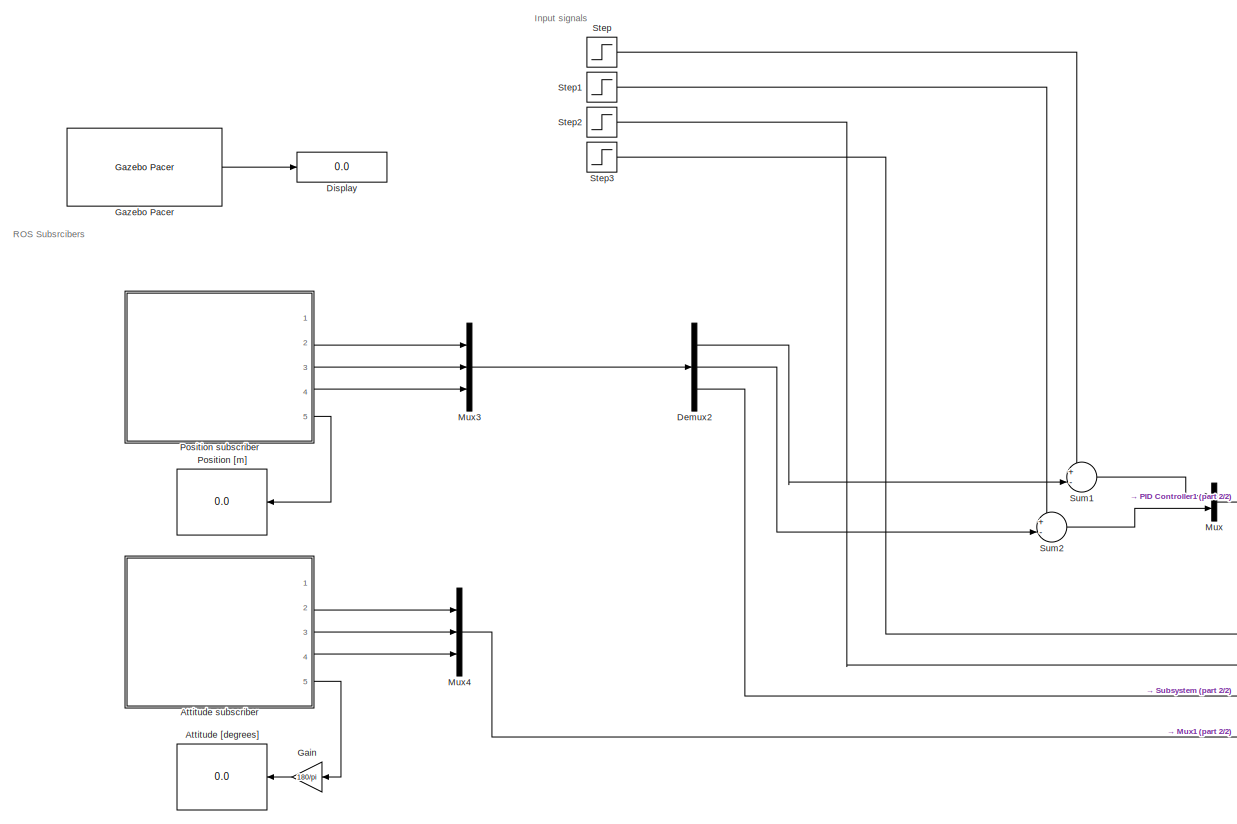
[diagram: root canvas - part 1/2, left side, full height]
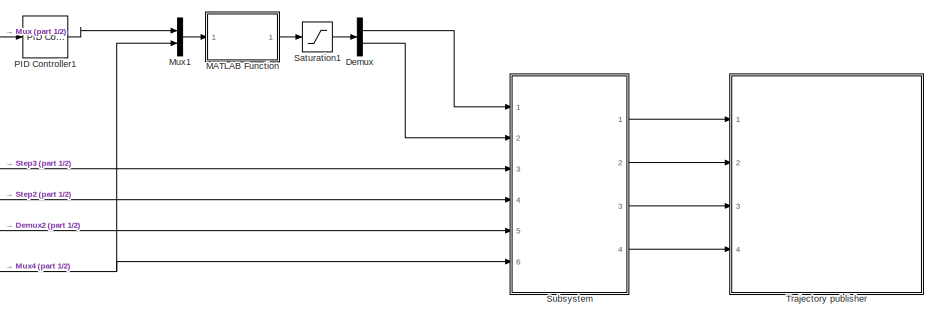
[diagram: root canvas - part 2/2, bottom right region]
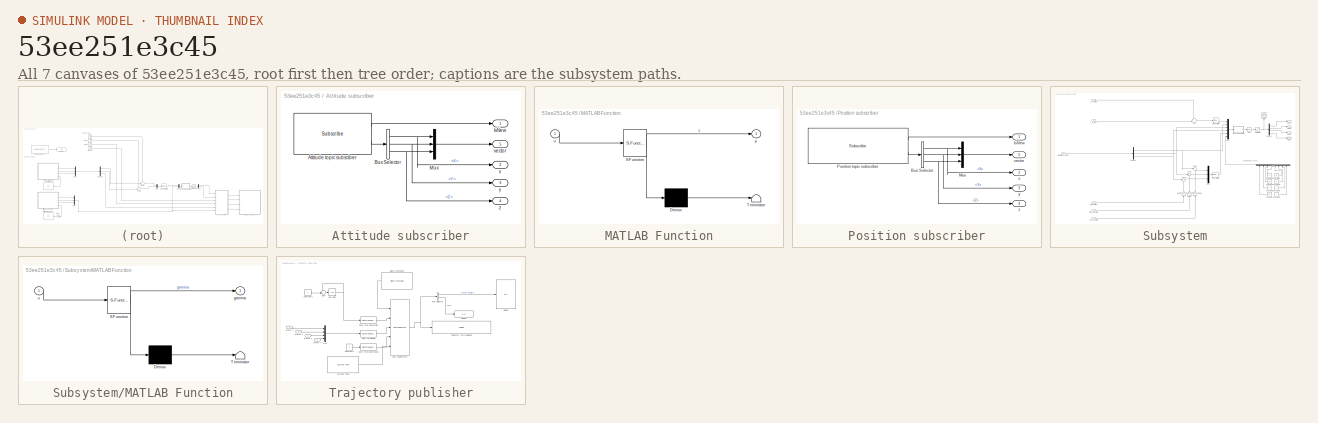
[diagram: thumbnail index - all 7 canvases of the model, root first then tree order]
MODEL slx_53ee251e3c45
KIND model
CONFIG AbsTol = auto
CONFIG EnableMultiTasking = off
CONFIG FixedStep = FIXED_STEP_SIZE
CONFIG MaxStep = auto
CONFIG MinStep = auto
CONFIG RelTol = 1e-3
CONFIG SampleTimeConstraint = Unconstrained
CONFIG Solver = FixedStepAuto
CONFIG SolverName = FixedStepAuto
CONFIG StartTime = 0.0
CONFIG StopTime = inf
WORKSPACE source: mxarray member
WORKSPACE SL_ROS_VariableLengthArrays_MaxSizes: object (value not decoded)
BLOCK [Display] Attitude [degrees]
  Decimation = 1
  Ports = [1]
BLOCK [SubSystem] Attitude subscriber
  Ports = [0, 5]
  RequestExecContextInheritance = off
BLOCK [Reference] Attitude subscriber/Attitude topic subsciber  REF=robotlib/Subscribe
  Ports = [0, 2]
  SourceBlock = robotlib/Subscribe
  SourceProductBaseCode = RR
  SourceProductName = ROS Toolbox
  SourceType = ROS Subscribe
BLOCK [BusSelector] Attitude subscriber/Bus Selector
  OutputAsBus = off
  OutputSignals = X,Y,Z
  Ports = [1, 3]
BLOCK [Outport] Attitude subscriber/IsNew
  IconDisplay = Port number
BLOCK [Mux] Attitude subscriber/Mux
  DisplayOption = bar
  Inputs = 3
  Ports = [3, 1]
BLOCK [Outport] Attitude subscriber/vector
  IconDisplay = Port number
  Port = 5
BLOCK [Outport] Attitude subscriber/x
  IconDisplay = Port number
  Port = 2
BLOCK [Outport] Attitude subscriber/y
  IconDisplay = Port number
  Port = 3
BLOCK [Outport] Attitude subscriber/z
  IconDisplay = Port number
  Port = 4
BLOCK [Demux] Demux
  DisplayOption = bar
  Outputs = 2
  Ports = [1, 2]
BLOCK [Demux] Demux2
  DisplayOption = bar
  Outputs = 3
  Ports = [1, 3]
BLOCK [Display] Display
  Decimation = 1
  Ports = [1]
BLOCK [Gain] Gain
  Gain = 180/pi
  OutDataTypeStr = Inherit: Inherit via internal rule
  ParamDataTypeStr = Inherit: Inherit via internal rule
  SaturateOnIntegerOverflow = off
BLOCK [Reference] Gazebo Pacer  REF=robotgazebolib/Gazebo Pacer
  Ports = [0, 1]
  SourceBlock = robotgazebolib/Gazebo Pacer
  SourceProductBaseCode = RO
  SourceProductName = Robotics System Toolbox
  SourceType = Gazebo Pacer
BLOCK [SubSystem] MATLAB Function
  ErrorFcn = Stateflow.Translate.translate
  PermitHierarchicalResolution = ExplicitOnly
  Ports = [1, 1]
  RequestExecContextInheritance = off
  SFBlockType = MATLAB Function
  TreatAsAtomicUnit = on
BLOCK [Demux] MATLAB Function/ Demux 
  Outputs = 1
  Ports = [1, 1]
BLOCK [S-Function] MATLAB Function/ SFunction 
  EnableBusSupport = on
  FunctionName = sf_sfun
  PortCounts = [1 2]
  Ports = [1, 2]
  SFcnIsStateOwnerBlock = off
  SFunctionDeploymentMode = off
  Tag = Stateflow S-Function 1
BLOCK [Terminator] MATLAB Function/ Terminator 
BLOCK [Inport] MATLAB Function/u
  IconDisplay = Port number
BLOCK [Outport] MATLAB Function/y
  IconDisplay = Port number
BLOCK [Mux] Mux
  DisplayOption = bar
  Inputs = 2
  Ports = [2, 1]
BLOCK [Mux] Mux1
  DisplayOption = bar
  Inputs = 2
  Ports = [2, 1]
BLOCK [Mux] Mux3
  DisplayOption = bar
  Inputs = 3
  Ports = [3, 1]
BLOCK [Mux] Mux4
  DisplayOption = bar
  Inputs = 3
  Ports = [3, 1]
BLOCK [Reference] PID Controller1  REF=simulink/Continuous/PID Controller
  Ports = [1, 1]
  SourceBlock = simulink/Continuous/PID Controller
  SourceProductBaseCode = SL
  SourceProductName = Simulink
  SourceType = PID 1dof
BLOCK [Display] Position [m]
  Decimation = 1
  Ports = [1]
BLOCK [SubSystem] Position subscriber
  Ports = [0, 5]
  RequestExecContextInheritance = off
BLOCK [BusSelector] Position subscriber/Bus Selector
  OutputAsBus = off
  OutputSignals = Point.X,Point.Y,Point.Z
  Ports = [1, 3]
BLOCK [Outport] Position subscriber/IsNew
  IconDisplay = Port number
BLOCK [Mux] Position subscriber/Mux
  DisplayOption = bar
  Inputs = 3
  Ports = [3, 1]
BLOCK [Reference] Position subscriber/Position topic subscriber  REF=robotlib/Subscribe
  Ports = [0, 2]
  SourceBlock = robotlib/Subscribe
  SourceProductBaseCode = RR
  SourceProductName = ROS Toolbox
  SourceType = ROS Subscribe
BLOCK [Outport] Position subscriber/vector
  IconDisplay = Port number
  Port = 5
BLOCK [Outport] Position subscriber/x
  IconDisplay = Port number
  Port = 2
BLOCK [Outport] Position subscriber/y
  IconDisplay = Port number
  Port = 3
BLOCK [Outport] Position subscriber/z
  IconDisplay = Port number
  Port = 4
BLOCK [Saturate] Saturation1
  InputPortMap = u0
  LowerLimit = -0.4
  Ports = [1, 1]
  UpperLimit = 0.4
BLOCK [Step] Step
  After = 4
  SampleTime = 0
  Time = 3
BLOCK [Step] Step1
  After = 6
  SampleTime = 0
  Time = 3
BLOCK [Step] Step2
  SampleTime = 0
BLOCK [Step] Step3
  After = 90
  SampleTime = 0
  Time = 3
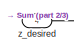
[diagram: Subsystem - part 1/3, top left region]
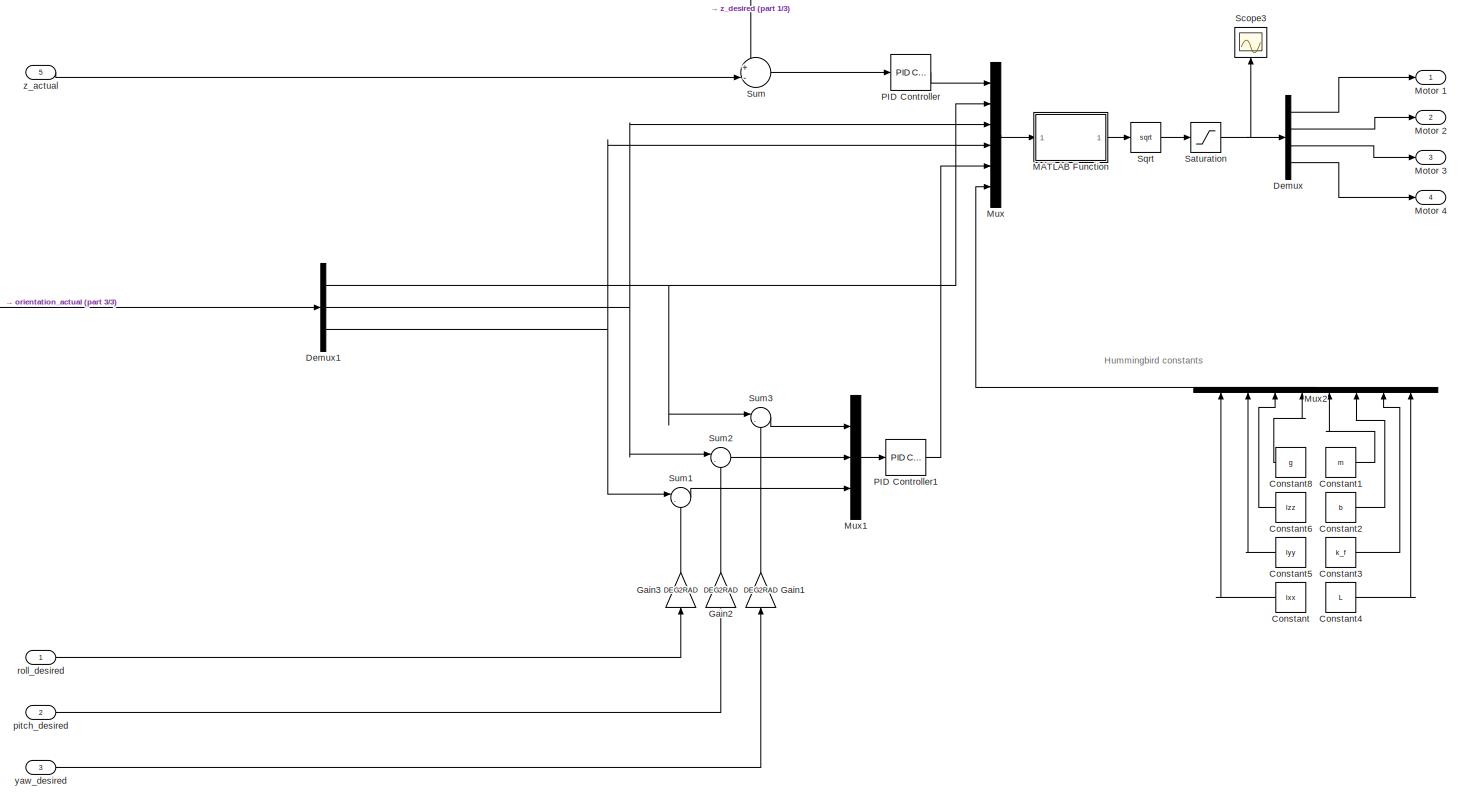
[diagram: Subsystem - part 2/3, most of the canvas]
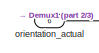
[diagram: Subsystem - part 3/3, middle left region]
BLOCK [SubSystem] Subsystem
  Ports = [6, 4]
  RequestExecContextInheritance = off
BLOCK [Constant] Subsystem/Constant
  Value = Ixx
BLOCK [Constant] Subsystem/Constant1
  Value = m
BLOCK [Constant] Subsystem/Constant2
  Value = b
BLOCK [Constant] Subsystem/Constant3
  Value = k_f
BLOCK [Constant] Subsystem/Constant4
  Value = L
BLOCK [Constant] Subsystem/Constant5
  Value = Iyy
BLOCK [Constant] Subsystem/Constant6
  Value = Izz
BLOCK [Constant] Subsystem/Constant8
  Value = g
BLOCK [Demux] Subsystem/Demux
  DisplayOption = bar
  Ports = [1, 4]
BLOCK [Demux] Subsystem/Demux1
  DisplayOption = bar
  Outputs = 3
  Ports = [1, 3]
BLOCK [Gain] Subsystem/Gain1
  Gain = DEG2RAD
  OutDataTypeStr = Inherit: Inherit via internal rule
  ParamDataTypeStr = Inherit: Inherit via internal rule
  SaturateOnIntegerOverflow = off
BLOCK [Gain] Subsystem/Gain2
  Gain = DEG2RAD
  OutDataTypeStr = Inherit: Inherit via internal rule
  ParamDataTypeStr = Inherit: Inherit via internal rule
  SaturateOnIntegerOverflow = off
BLOCK [Gain] Subsystem/Gain3
  Gain = DEG2RAD
  OutDataTypeStr = Inherit: Inherit via internal rule
  ParamDataTypeStr = Inherit: Inherit via internal rule
  SaturateOnIntegerOverflow = off
BLOCK [SubSystem] Subsystem/MATLAB Function
  ErrorFcn = Stateflow.Translate.translate
  PermitHierarchicalResolution = ExplicitOnly
  Ports = [1, 1]
  RequestExecContextInheritance = off
  SFBlockType = MATLAB Function
  TreatAsAtomicUnit = on
BLOCK [Demux] Subsystem/MATLAB Function/ Demux 
  Outputs = 1
  Ports = [1, 1]
BLOCK [S-Function] Subsystem/MATLAB Function/ SFunction 
  EnableBusSupport = on
  FunctionName = sf_sfun
  PortCounts = [1 2]
  Ports = [1, 2]
  SFcnIsStateOwnerBlock = off
  SFunctionDeploymentMode = off
  Tag = Stateflow S-Function 2
BLOCK [Terminator] Subsystem/MATLAB Function/ Terminator 
BLOCK [Outport] Subsystem/MATLAB Function/gamma
  IconDisplay = Port number
BLOCK [Inport] Subsystem/MATLAB Function/u
  IconDisplay = Port number
BLOCK [Outport] Subsystem/Motor 1
  IconDisplay = Port number
BLOCK [Outport] Subsystem/Motor 2
  IconDisplay = Port number
  Port = 2
BLOCK [Outport] Subsystem/Motor 3
  IconDisplay = Port number
  Port = 3
BLOCK [Outport] Subsystem/Motor 4
  IconDisplay = Port number
  Port = 4
BLOCK [Mux] Subsystem/Mux
  DisplayOption = bar
  Inputs = 6
  Ports = [6, 1]
BLOCK [Mux] Subsystem/Mux1
  DisplayOption = bar
  Inputs = 3
  Ports = [3, 1]
BLOCK [Mux] Subsystem/Mux2
  DisplayOption = bar
  Inputs = 8
  Ports = [8, 1]
BLOCK [Reference] Subsystem/PID Controller  REF=simulink/Continuous/PID Controller
  Ports = [1, 1]
  SourceBlock = simulink/Continuous/PID Controller
  SourceProductBaseCode = SL
  SourceProductName = Simulink
  SourceType = PID 1dof
BLOCK [Reference] Subsystem/PID Controller1  REF=simulink/Continuous/PID Controller
  Ports = [1, 1]
  SourceBlock = simulink/Continuous/PID Controller
  SourceProductBaseCode = SL
  SourceProductName = Simulink
  SourceType = PID 1dof
BLOCK [Saturate] Subsystem/Saturation
  InputPortMap = u0
  LowerLimit = 0
  Ports = [1, 1]
  UpperLimit = MAX_ROTOR_VEL
BLOCK [Scope] Subsystem/Scope3
  Floating = off
  NumInputPorts = 1
  Ports = [1]
  ScopeSpecificationString = Simulink.scopes.TimeScopeBlockCfg('CurrentConfiguration', extmgr.ConfigurationSet(extmgr.Configuration('Core','General UI',true),extmgr.Configuration('Core','Source UI',true),extmgr.Configuration('Sources','WiredSimulink',true,'DataLoggingVariableName','ScopeData1'),extmgr.Configuration('Visuals','Time Domain',true,'SerializedDisplays',{struct('MinYLimReal','320.06176','MaxYLimReal','895.54869','Y...<+1485ch>
BLOCK [Sqrt] Subsystem/Sqrt
BLOCK [Sum] Subsystem/Sum
  IconShape = round
  InputSameDT = off
  Inputs = +-|
  OutDataTypeStr = Inherit: Inherit via internal rule
  Ports = [2, 1]
  SaturateOnIntegerOverflow = off
BLOCK [Sum] Subsystem/Sum1
  IconShape = round
  InputSameDT = off
  Inputs = |-+
  OutDataTypeStr = Inherit: Inherit via internal rule
  Ports = [2, 1]
  SaturateOnIntegerOverflow = off
BLOCK [Sum] Subsystem/Sum2
  IconShape = round
  InputSameDT = off
  Inputs = |-+
  OutDataTypeStr = Inherit: Inherit via internal rule
  Ports = [2, 1]
  SaturateOnIntegerOverflow = off
BLOCK [Sum] Subsystem/Sum3
  IconShape = round
  InputSameDT = off
  Inputs = |-+
  OutDataTypeStr = Inherit: Inherit via internal rule
  Ports = [2, 1]
  SaturateOnIntegerOverflow = off
BLOCK [Inport] Subsystem/orientation_actual
  IconDisplay = Port number
  Port = 6
BLOCK [Inport] Subsystem/pitch_desired
  IconDisplay = Port number
  Port = 2
BLOCK [Inport] Subsystem/roll_desired
  IconDisplay = Port number
BLOCK [Inport] Subsystem/yaw_desired
  IconDisplay = Port number
  Port = 3
BLOCK [Inport] Subsystem/z_actual
  IconDisplay = Port number
  Port = 5
BLOCK [Inport] Subsystem/z_desired
  IconDisplay = Port number
  Port = 4
BLOCK [Sum] Sum1
  IconShape = round
  InputSameDT = off
  Inputs = +-|
  OutDataTypeStr = Inherit: Inherit via internal rule
  Ports = [2, 1]
  SaturateOnIntegerOverflow = off
BLOCK [Sum] Sum2
  IconShape = round
  InputSameDT = off
  Inputs = +-|
  OutDataTypeStr = Inherit: Inherit via internal rule
  Ports = [2, 1]
  SaturateOnIntegerOverflow = off
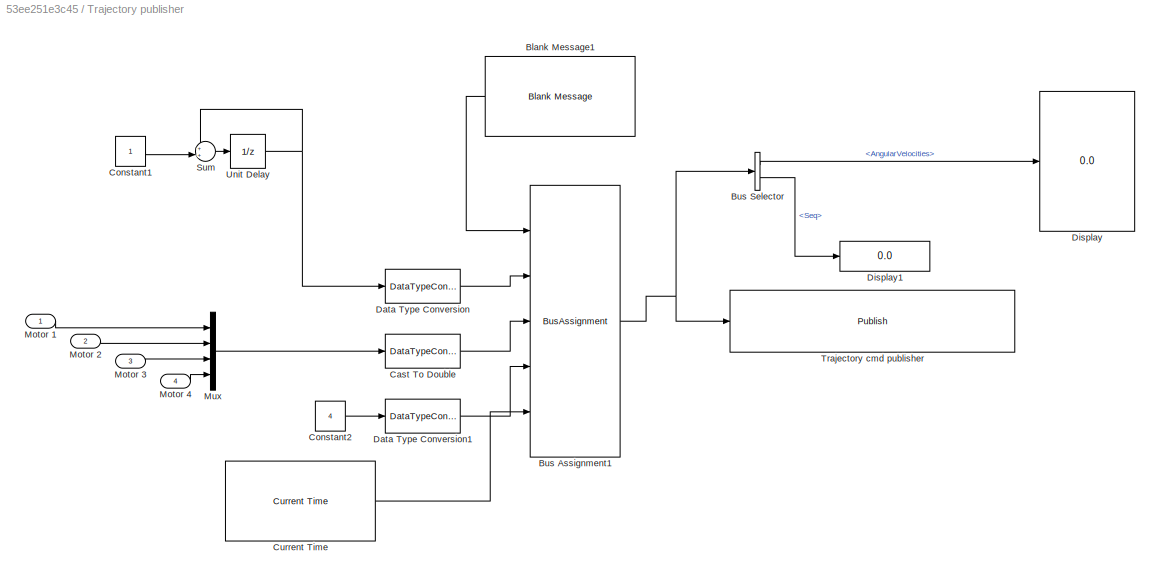
BLOCK [SubSystem] Trajectory publisher
  Ports = [4]
  RequestExecContextInheritance = off
BLOCK [Reference] Trajectory publisher/Blank Message1  REF=robotlib/Blank Message
  Ports = [0, 1]
  SourceBlock = robotlib/Blank Message
  SourceProductBaseCode = RR
  SourceProductName = ROS Toolbox
  SourceType = ROS Blank Message
BLOCK [BusAssignment] Trajectory publisher/Bus Assignment1
  AssignedSignals = Header.Seq,AngularVelocities,AngularVelocities_SL_Info.CurrentLength,Header.Stamp
  Ports = [5, 1]
BLOCK [BusSelector] Trajectory publisher/Bus Selector
  OutputAsBus = off
  OutputSignals = AngularVelocities,Header.Seq
  Ports = [1, 2]
BLOCK [DataTypeConversion] Trajectory publisher/Cast To Double
  OutDataTypeStr = double
  RndMeth = Floor
  SaturateOnIntegerOverflow = off
BLOCK [Constant] Trajectory publisher/Constant1
BLOCK [Constant] Trajectory publisher/Constant2
  Value = 4
BLOCK [Reference] Trajectory publisher/Current Time  REF=robotlib/Current Time
  Ports = [0, 1]
  SourceBlock = robotlib/Current Time
  SourceProductBaseCode = RR
  SourceProductName = ROS Toolbox
  SourceType = ros.slros.internal.block.CurrentTime
BLOCK [DataTypeConversion] Trajectory publisher/Data Type Conversion
  OutDataTypeStr = uint32
  RndMeth = Floor
  SaturateOnIntegerOverflow = off
BLOCK [DataTypeConversion] Trajectory publisher/Data Type Conversion1
  OutDataTypeStr = uint32
  RndMeth = Floor
  SaturateOnIntegerOverflow = off
BLOCK [Display] Trajectory publisher/Display
  Decimation = 1
  Ports = [1]
BLOCK [Display] Trajectory publisher/Display1
  Decimation = 1
  Ports = [1]
BLOCK [Inport] Trajectory publisher/Motor 1
  IconDisplay = Port number
BLOCK [Inport] Trajectory publisher/Motor 2
  IconDisplay = Port number
  Port = 2
BLOCK [Inport] Trajectory publisher/Motor 3
  IconDisplay = Port number
  Port = 3
BLOCK [Inport] Trajectory publisher/Motor 4
  IconDisplay = Port number
  Port = 4
BLOCK [Mux] Trajectory publisher/Mux
  DisplayOption = bar
  Ports = [4, 1]
BLOCK [Sum] Trajectory publisher/Sum
  IconShape = round
  InputSameDT = off
  Inputs = ++|
  OutDataTypeStr = Inherit: Inherit via internal rule
  Ports = [2, 1]
  SaturateOnIntegerOverflow = off
BLOCK [Reference] Trajectory publisher/Trajectory cmd publisher  REF=robotlib/Publish
  Ports = [1]
  SourceBlock = robotlib/Publish
  SourceProductBaseCode = RR
  SourceProductName = ROS Toolbox
  SourceType = ROS Publish
BLOCK [UnitDelay] Trajectory publisher/Unit Delay
  HasFrameUpgradeWarning = on
  SampleTime = FIXED_STEP_SIZE
ANNOTATION (root): Input signals
ANNOTATION (root): ROS Subsrcibers
ANNOTATION Subsystem: Hummingbird constants
LINE Attitude subscriber/Attitude topic subsciber:1 -> Attitude subscriber/IsNew:1
LINE Attitude subscriber/Attitude topic subsciber:2 -> Attitude subscriber/Bus Selector:1
NET Attitude subscriber/Bus Selector:1 -> Attitude subscriber/Mux:1, Attitude subscriber/x:1
NET Attitude subscriber/Bus Selector:2 -> Attitude subscriber/Mux:2, Attitude subscriber/y:1
NET Attitude subscriber/Bus Selector:3 -> Attitude subscriber/Mux:3, Attitude subscriber/z:1
LINE Attitude subscriber/Mux:1 -> Attitude subscriber/vector:1
LINE Attitude subscriber:2 -> Mux4:1
LINE Attitude subscriber:3 -> Mux4:2
LINE Attitude subscriber:4 -> Mux4:3
LINE Attitude subscriber:5 -> Gain:1
LINE Demux2:1 -> Sum1:2
LINE Demux2:2 -> Sum2:2
LINE Demux2:3 -> Subsystem:5
LINE Demux:1 -> Subsystem:1
LINE Demux:2 -> Subsystem:2
LINE Gain:1 -> Attitude [degrees]:1
LINE Gazebo Pacer:1 -> Display:1
LINE MATLAB Function:1 -> Saturation1:1
LINE Mux1:1 -> MATLAB Function:1
LINE Mux3:1 -> Demux2:1
NET Mux4:1 -> Mux1:2, Subsystem:6
LINE Mux:1 -> PID Controller1:1
LINE PID Controller1:1 -> Mux1:1
NET Position subscriber/Bus Selector:1 -> Position subscriber/Mux:1, Position subscriber/x:1
NET Position subscriber/Bus Selector:2 -> Position subscriber/Mux:2, Position subscriber/y:1
NET Position subscriber/Bus Selector:3 -> Position subscriber/Mux:3, Position subscriber/z:1
LINE Position subscriber/Mux:1 -> Position subscriber/vector:1
LINE Position subscriber/Position topic subscriber:1 -> Position subscriber/IsNew:1
LINE Position subscriber/Position topic subscriber:2 -> Position subscriber/Bus Selector:1
LINE Position subscriber:2 -> Mux3:1
LINE Position subscriber:3 -> Mux3:2
LINE Position subscriber:4 -> Mux3:3
LINE Position subscriber:5 -> Position [m]:1
LINE Saturation1:1 -> Demux:1
LINE Step1:1 -> Sum2:1
LINE Step2:1 -> Subsystem:4
LINE Step3:1 -> Subsystem:3
LINE Step:1 -> Sum1:1
LINE Subsystem/Constant1:1 -> Subsystem/Mux2:5
LINE Subsystem/Constant2:1 -> Subsystem/Mux2:6
LINE Subsystem/Constant3:1 -> Subsystem/Mux2:7
LINE Subsystem/Constant4:1 -> Subsystem/Mux2:8
LINE Subsystem/Constant5:1 -> Subsystem/Mux2:2
LINE Subsystem/Constant6:1 -> Subsystem/Mux2:3
LINE Subsystem/Constant8:1 -> Subsystem/Mux2:4
LINE Subsystem/Constant:1 -> Subsystem/Mux2:1
NET Subsystem/Demux1:1 -> Subsystem/Mux:2, Subsystem/Sum3:1
NET Subsystem/Demux1:2 -> Subsystem/Mux:3, Subsystem/Sum2:1
NET Subsystem/Demux1:3 -> Subsystem/Mux:4, Subsystem/Sum1:1
LINE Subsystem/Demux:1 -> Subsystem/Motor 1:1
LINE Subsystem/Demux:2 -> Subsystem/Motor 2:1
LINE Subsystem/Demux:3 -> Subsystem/Motor 3:1
LINE Subsystem/Demux:4 -> Subsystem/Motor 4:1
LINE Subsystem/Gain1:1 -> Subsystem/Sum3:2
LINE Subsystem/Gain2:1 -> Subsystem/Sum2:2
LINE Subsystem/Gain3:1 -> Subsystem/Sum1:2
LINE Subsystem/MATLAB Function:1 -> Subsystem/Sqrt:1
LINE Subsystem/Mux1:1 -> Subsystem/PID Controller1:1
LINE Subsystem/Mux2:1 -> Subsystem/Mux:6
LINE Subsystem/Mux:1 -> Subsystem/MATLAB Function:1
LINE Subsystem/PID Controller1:1 -> Subsystem/Mux:5
LINE Subsystem/PID Controller:1 -> Subsystem/Mux:1
NET Subsystem/Saturation:1 -> Subsystem/Demux:1, Subsystem/Scope3:1
LINE Subsystem/Sqrt:1 -> Subsystem/Saturation:1
LINE Subsystem/Sum1:1 -> Subsystem/Mux1:3
LINE Subsystem/Sum2:1 -> Subsystem/Mux1:2
LINE Subsystem/Sum3:1 -> Subsystem/Mux1:1
LINE Subsystem/Sum:1 -> Subsystem/PID Controller:1
LINE Subsystem/orientation_actual:1 -> Subsystem/Demux1:1
LINE Subsystem/pitch_desired:1 -> Subsystem/Gain2:1
LINE Subsystem/roll_desired:1 -> Subsystem/Gain3:1
LINE Subsystem/yaw_desired:1 -> Subsystem/Gain1:1
LINE Subsystem/z_actual:1 -> Subsystem/Sum:2
LINE Subsystem/z_desired:1 -> Subsystem/Sum:1
LINE Subsystem:1 -> Trajectory publisher:1
LINE Subsystem:2 -> Trajectory publisher:2
LINE Subsystem:3 -> Trajectory publisher:3
LINE Subsystem:4 -> Trajectory publisher:4
LINE Sum1:1 -> Mux:1
LINE Sum2:1 -> Mux:2
LINE Trajectory publisher/Blank Message1:1 -> Trajectory publisher/Bus Assignment1:1
NET Trajectory publisher/Bus Assignment1:1 -> Trajectory publisher/Bus Selector:1, Trajectory publisher/Trajectory cmd publisher:1
LINE Trajectory publisher/Bus Selector:1 -> Trajectory publisher/Display:1
LINE Trajectory publisher/Bus Selector:2 -> Trajectory publisher/Display1:1
LINE Trajectory publisher/Cast To Double:1 -> Trajectory publisher/Bus Assignment1:3
LINE Trajectory publisher/Constant1:1 -> Trajectory publisher/Sum:2
LINE Trajectory publisher/Constant2:1 -> Trajectory publisher/Data Type Conversion1:1
LINE Trajectory publisher/Current Time:1 -> Trajectory publisher/Bus Assignment1:5
LINE Trajectory publisher/Data Type Conversion1:1 -> Trajectory publisher/Bus Assignment1:4
LINE Trajectory publisher/Data Type Conversion:1 -> Trajectory publisher/Bus Assignment1:2
LINE Trajectory publisher/Motor 1:1 -> Trajectory publisher/Mux:1
LINE Trajectory publisher/Motor 2:1 -> Trajectory publisher/Mux:2
LINE Trajectory publisher/Motor 3:1 -> Trajectory publisher/Mux:3
LINE Trajectory publisher/Motor 4:1 -> Trajectory publisher/Mux:4
LINE Trajectory publisher/Mux:1 -> Trajectory publisher/Cast To Double:1
LINE Trajectory publisher/Sum:1 -> Trajectory publisher/Unit Delay:1
NET Trajectory publisher/Unit Delay:1 -> Trajectory publisher/Data Type Conversion:1, Trajectory publisher/Sum:1
note: NET lines group one-source signal fan-out (src -> all destinations, sorted); 1:1 wires keep LINE
CHART MATLAB Function states=1 transitions=1
  STATE_LABEL 'eML_blk_kernel()'
  STATE_LABEL 'SCRIPT:\nfunction y = fcn(u)\n\nex = u(1);\ney = u(2);\nphi = u(3);\ntheta = u(4);\npsi = u(5);\n\ny = [ex*(cos(phi)*sin(psi) - cos(psi)*sin(phi)*sin(theta)) - ey*(cos(phi)*cos(psi) + sin(phi)*sin(psi)*sin(theta));\n     ex*cos(psi)*cos(theta) + ey*cos(theta)*sin(psi)];\n\nend\n'
CHART Subsystem/MATLAB Function states=1 transitions=1
  STATE_LABEL 'eML_blk_kernel()'
  STATE_LABEL 'SCRIPT:\nfunction gamma = fcn(u)\n\n% pose variables\nu_z = u(1);\nphi = u(2);\ntheta = u(3);\npsi = u(4);\nu_att_1 = u(5);\nu_att_2 = u(6);\nu_att_3 = u(7);\n\n% Constants\nIxx = u(8);\nIyy = u(9);\nIzz = u(10);\ng = u(11);\nm = u(12);\nb = u(13);\nk_f = u(14);\nL = u(15);\n\nalti_part = (m*g + u_z)/(k_f * 4 * cos(theta)*cos(phi));\n\ngamma_1 = alti_part - (2*b*u_att_1*Ixx+...\n        u_att_3*Izz*k_f*L)/(4*b*k_f*L);\ngam...<+310ch>'
